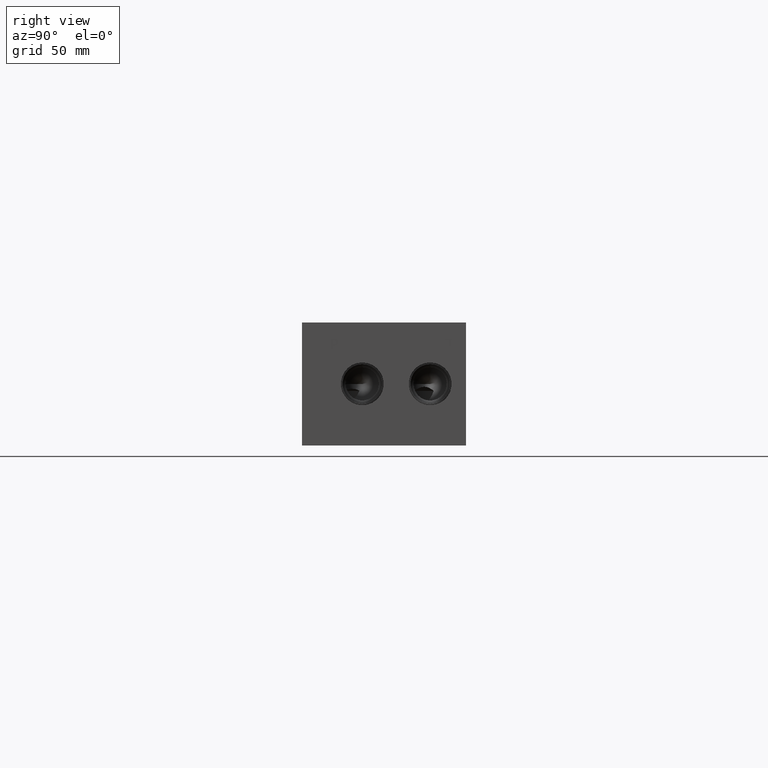
[diagram: clean part render]
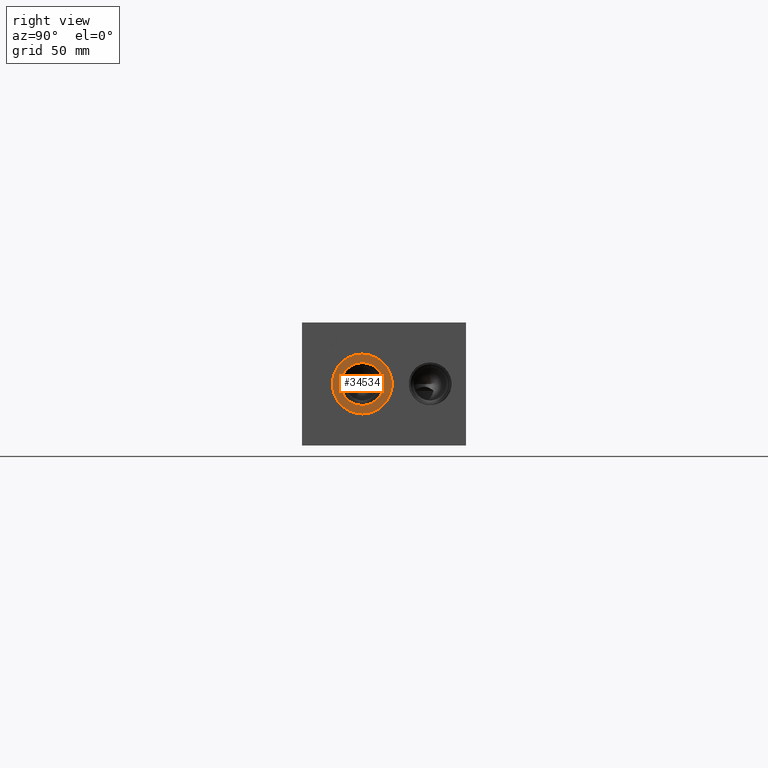
[diagram: same view with one face highlighted and labeled with its STEP entity id]
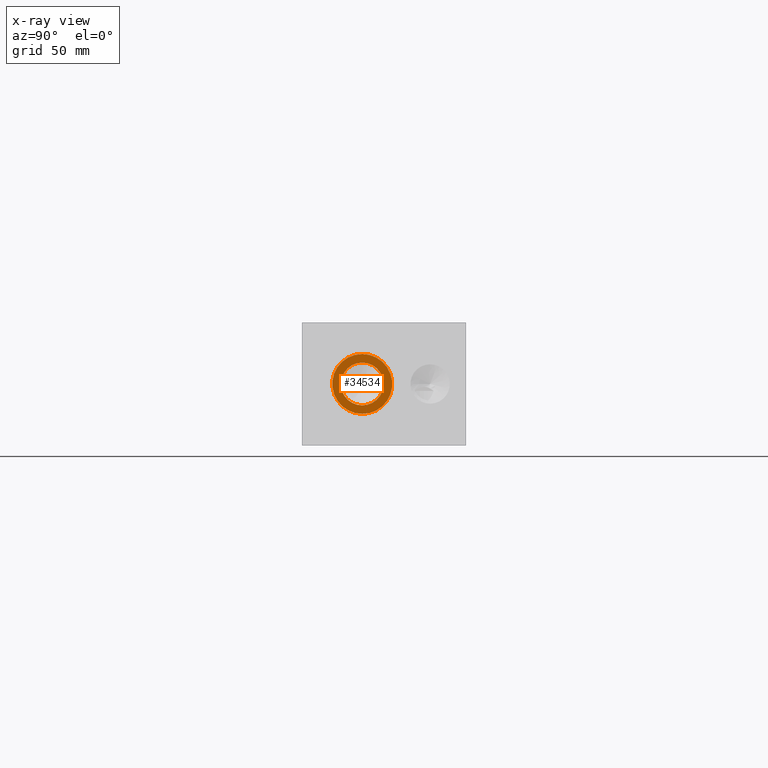
[diagram: x-ray of the same camera — body ghosted, the highlighted face saturated]
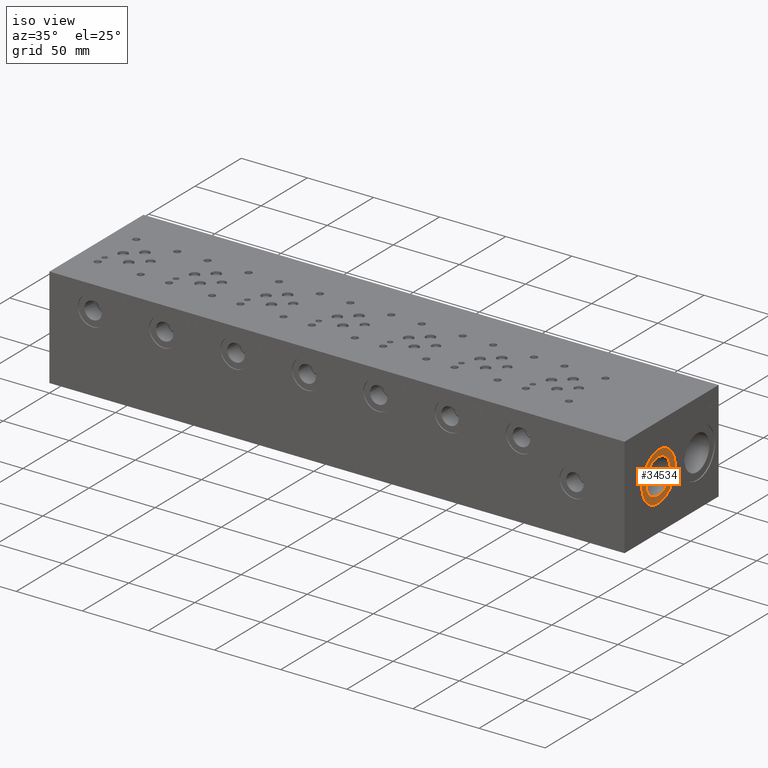
[diagram: same view with one face highlighted and labeled with its STEP entity id]
A machine part, right view. The second image highlights one B-rep face of the part: STEP entity #34534.
The next image is the same camera in x-ray: the body ghosted, the highlighted face saturated — about 0% of this face is hidden behind the body in this view.
A second angle (iso view) of the same face is appended — the face is thin or edge-on in the first view.
In plain terms, the highlighted planar face has unit normal (-1, 0, 0).
Its self-contained STEP definition (entity closure, byte-faithful):
#712=CIRCLE('',#36127,18.5547);
#713=CIRCLE('',#36128,18.5547);
#714=CIRCLE('',#36130,13.2715);
#715=CIRCLE('',#36131,13.2715);
#1494=FACE_BOUND('',#6746,.T.);
#4738=FACE_OUTER_BOUND('',#6745,.T.);
#6745=EDGE_LOOP('',(#29159,#29160));
#6746=EDGE_LOOP('',(#29161,#29162));
#15672=VERTEX_POINT('',#59655);
#15673=VERTEX_POINT('',#59657);
#15674=VERTEX_POINT('',#59661);
#15675=VERTEX_POINT('',#59662);
#20355=EDGE_CURVE('',#15672,#15673,#712,.T.);
#20356=EDGE_CURVE('',#15673,#15672,#713,.T.);
#20357=EDGE_CURVE('',#15674,#15675,#714,.T.);
#20358=EDGE_CURVE('',#15675,#15674,#715,.T.);
#29159=ORIENTED_EDGE('',*,*,#20356,.F.);
#29160=ORIENTED_EDGE('',*,*,#20355,.F.);
#29161=ORIENTED_EDGE('',*,*,#20357,.T.);
#29162=ORIENTED_EDGE('',*,*,#20358,.T.);
#31737=PLANE('',#36129);
#34534=ADVANCED_FACE('',(#4738,#1494),#31737,.F.);
#36127=AXIS2_PLACEMENT_3D('',#59658,#42130,#42131);
#36128=AXIS2_PLACEMENT_3D('',#59659,#42132,#42133);
#36129=AXIS2_PLACEMENT_3D('',#59660,#42134,#42135);
#36130=AXIS2_PLACEMENT_3D('',#59663,#42136,#42137);
#36131=AXIS2_PLACEMENT_3D('',#59664,#42138,#42139);
#42130=DIRECTION('center_axis',(-1.,0.,0.));
#42131=DIRECTION('ref_axis',(0.,0.,1.));
#42132=DIRECTION('center_axis',(-1.,0.,0.));
#42133=DIRECTION('ref_axis',(0.,0.,1.));
#42134=DIRECTION('center_axis',(-1.,0.,0.));
#42135=DIRECTION('ref_axis',(0.,0.,1.));
#42136=DIRECTION('center_axis',(-1.,0.,0.));
#42137=DIRECTION('ref_axis',(0.,0.,1.));
#42138=DIRECTION('center_axis',(-1.,0.,0.));
#42139=DIRECTION('ref_axis',(0.,0.,1.));
#59655=CARTESIAN_POINT('',(434.1876,37.3126,56.6547));
#59657=CARTESIAN_POINT('',(434.1876,37.3126,19.5453));
#59658=CARTESIAN_POINT('Origin',(434.1876,37.3126,38.1));
#59659=CARTESIAN_POINT('Origin',(434.1876,37.3126,38.1));
#59660=CARTESIAN_POINT('Origin',(434.1876,37.3126,24.8285));
#59661=CARTESIAN_POINT('',(434.1876,37.3126,24.8285));
#59662=CARTESIAN_POINT('',(434.1876,37.3126,51.3715));
#59663=CARTESIAN_POINT('Origin',(434.1876,37.3126,38.1));
#59664=CARTESIAN_POINT('Origin',(434.1876,37.3126,38.1));